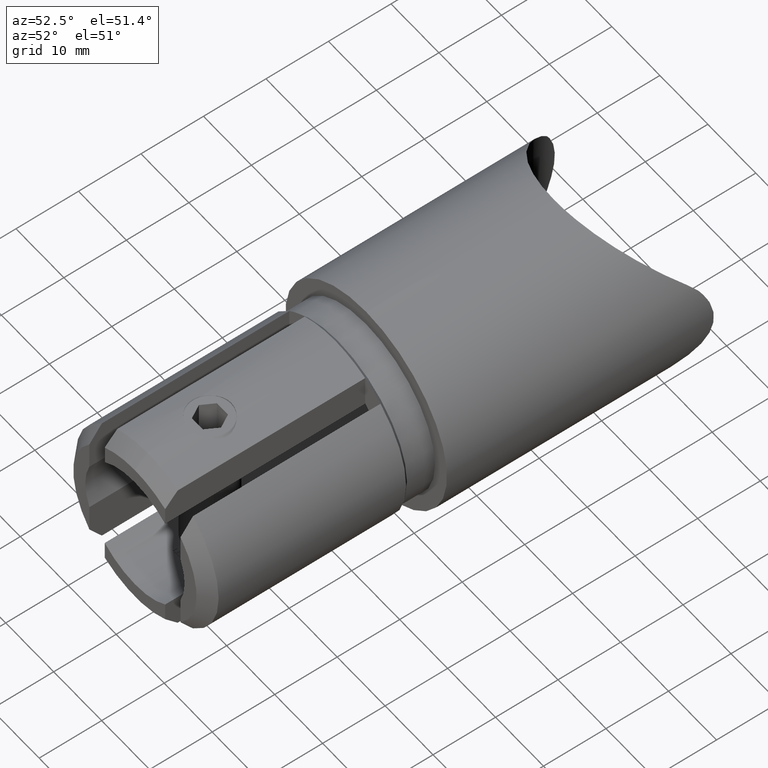
[diagram: clean part render]
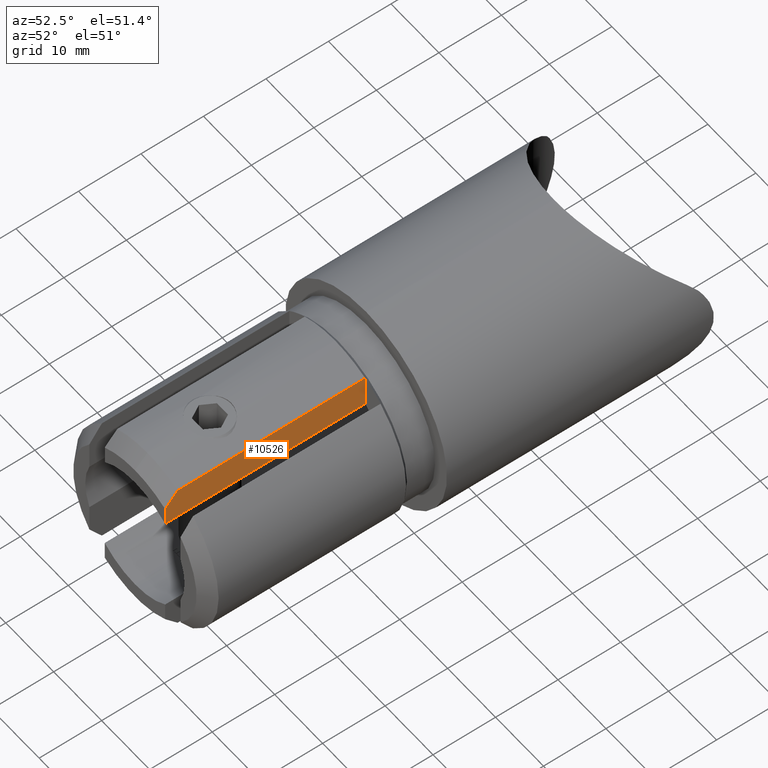
[diagram: same view with one face highlighted and labeled with its STEP entity id]
A machine part, auxiliary view. The second image highlights one B-rep face of the part: STEP entity #10526.
In plain terms, the highlighted planar face has unit normal (-1, 0, 0).
Its self-contained STEP definition (entity closure, byte-faithful):
#45 = DIRECTION ( 'NONE',  ( -0.0000000000000000000, -0.0000000000000000000, 1.000000000000000000 ) ) ;
#748 = LINE ( 'NONE', #3188, #7922 ) ;
#1006 = VERTEX_POINT ( 'NONE', #14058 ) ;
#1184 = EDGE_CURVE ( 'NONE', #8705, #6132, #5243, .T. ) ;
#1559 = B_SPLINE_CURVE_WITH_KNOTS ( 'NONE', 3,
 ( #11741, #5154, #9723, #8627 ),
 .UNSPECIFIED., .F., .F.,
 ( 4, 4 ),
 ( 0.02580683187805100900, 0.02881553517371723800 ),
 .UNSPECIFIED. ) ;
#1938 = AXIS2_PLACEMENT_3D ( 'NONE', #13798, #7278, #10558 ) ;
#2360 = VECTOR ( 'NONE', #45, 1000.000000000000000 ) ;
#2462 = ORIENTED_EDGE ( 'NONE', *, *, #11048, .F. ) ;
#2495 = VECTOR ( 'NONE', #13299, 1000.000000000000000 ) ;
#2884 = PLANE ( 'NONE',  #1938 ) ;
#3188 = CARTESIAN_POINT ( 'NONE',  ( 6.299999999999999800, -37.00000000000000000, 13.44739751773554400 ) ) ;
#3217 = VERTEX_POINT ( 'NONE', #5389 ) ;
#3478 = EDGE_LOOP ( 'NONE', ( #6672, #2462, #11573, #6151, #11226 ) ) ;
#5154 = CARTESIAN_POINT ( 'NONE',  ( 6.299999999999999800, -35.67320264994761900, 12.70397788292981100 ) ) ;
#5243 = LINE ( 'NONE', #8322, #2360 ) ;
#5389 = CARTESIAN_POINT ( 'NONE',  ( 6.299999999999999800, -34.99999999999997900, 13.44739751773555800 ) ) ;
#5618 = CARTESIAN_POINT ( 'NONE',  ( 6.300000000000000700, 9.000000000000001800, 8.211729415902596000 ) ) ;
#6012 = LINE ( 'NONE', #12348, #11135 ) ;
#6132 = VERTEX_POINT ( 'NONE', #8252 ) ;
#6151 = ORIENTED_EDGE ( 'NONE', *, *, #1184, .T. ) ;
#6267 = EDGE_CURVE ( 'NONE', #3217, #9547, #1559, .T. ) ;
#6473 = EDGE_CURVE ( 'NONE', #3217, #6132, #748, .T. ) ;
#6672 = ORIENTED_EDGE ( 'NONE', *, *, #6267, .T. ) ;
#7278 = DIRECTION ( 'NONE',  ( -1.000000000000000000, 2.710505431213760800E-017, 0.0000000000000000000 ) ) ;
#7922 = VECTOR ( 'NONE', #10790, 1000.000000000000000 ) ;
#8057 = CARTESIAN_POINT ( 'NONE',  ( 6.299999999999999800, -37.00000000000000000, 11.19966517356656000 ) ) ;
#8151 = DIRECTION ( 'NONE',  ( -0.0000000000000000000, -0.0000000000000000000, 1.000000000000000000 ) ) ;
#8252 = CARTESIAN_POINT ( 'NONE',  ( 6.300000000000000700, -4.999999999999990200, 13.44739751773554600 ) ) ;
#8322 = CARTESIAN_POINT ( 'NONE',  ( 6.300000000000000700, -4.999999999999990200, -16.85000000000000100 ) ) ;
#8627 = CARTESIAN_POINT ( 'NONE',  ( 6.299999999999999800, -37.00000000000000000, 11.19966517356656000 ) ) ;
#8705 = VERTEX_POINT ( 'NONE', #11830 ) ;
#9467 = LINE ( 'NONE', #5618, #2495 ) ;
#9547 = VERTEX_POINT ( 'NONE', #8057 ) ;
#9723 = CARTESIAN_POINT ( 'NONE',  ( 6.299999999999999800, -36.34101532155754900, 11.95575501971405800 ) ) ;
#10526 = ADVANCED_FACE ( 'NONE', ( #14100 ), #2884, .F. ) ;
#10558 = DIRECTION ( 'NONE',  ( -2.710505431213760800E-017, -1.000000000000000000, 0.0000000000000000000 ) ) ;
#10790 = DIRECTION ( 'NONE',  ( -0.0000000000000000000, 1.000000000000000000, -0.0000000000000000000 ) ) ;
#11048 = EDGE_CURVE ( 'NONE', #1006, #9547, #6012, .T. ) ;
#11135 = VECTOR ( 'NONE', #8151, 1000.000000000000000 ) ;
#11226 = ORIENTED_EDGE ( 'NONE', *, *, #6473, .F. ) ;
#11573 = ORIENTED_EDGE ( 'NONE', *, *, #13453, .F. ) ;
#11741 = CARTESIAN_POINT ( 'NONE',  ( 6.299999999999999800, -34.99999999999997900, 13.44739751773555800 ) ) ;
#11830 = CARTESIAN_POINT ( 'NONE',  ( 6.300000000000000700, -4.999999999999990200, 8.211729415902596000 ) ) ;
#12348 = CARTESIAN_POINT ( 'NONE',  ( 6.299999999999999800, -37.00000000000000000, -16.85000000000000100 ) ) ;
#13299 = DIRECTION ( 'NONE',  ( -0.0000000000000000000, -1.000000000000000000, -0.0000000000000000000 ) ) ;
#13453 = EDGE_CURVE ( 'NONE', #8705, #1006, #9467, .T. ) ;
#13798 = CARTESIAN_POINT ( 'NONE',  ( 6.300000000000000700, -4.999999999999990200, -16.85000000000000100 ) ) ;
#14058 = CARTESIAN_POINT ( 'NONE',  ( 6.299999999999999800, -37.00000000000000000, 8.211729415902594200 ) ) ;
#14100 = FACE_OUTER_BOUND ( 'NONE', #3478, .T. ) ;